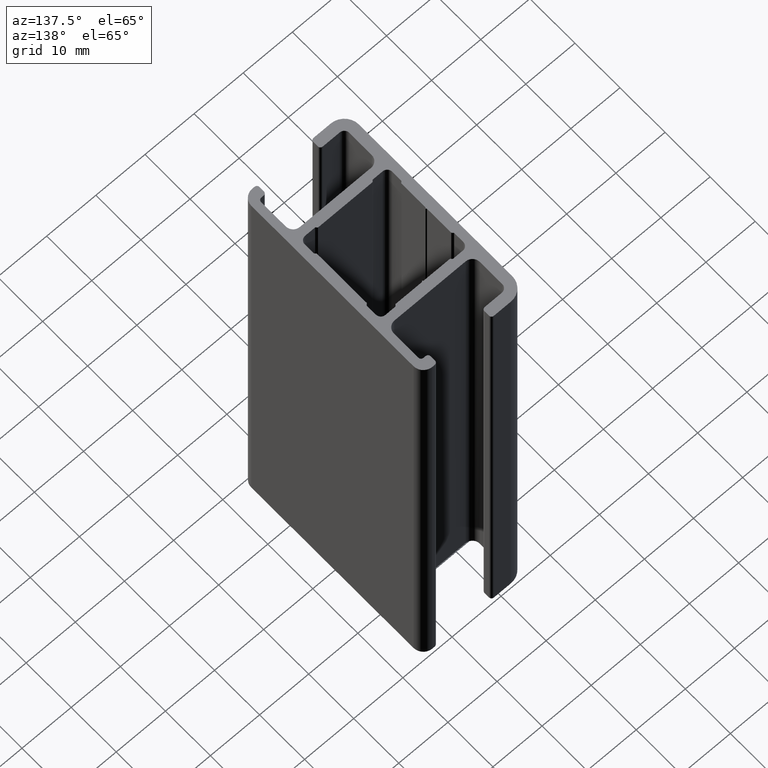
[diagram: clean part render]
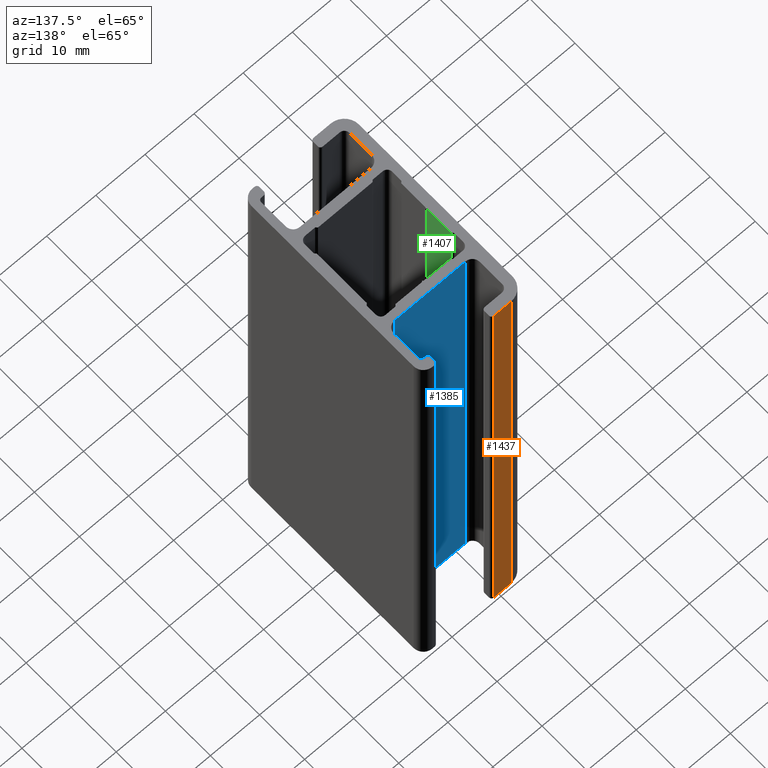
[diagram: same view with three faces highlighted in distinct colors, each labeled with its STEP entity id]
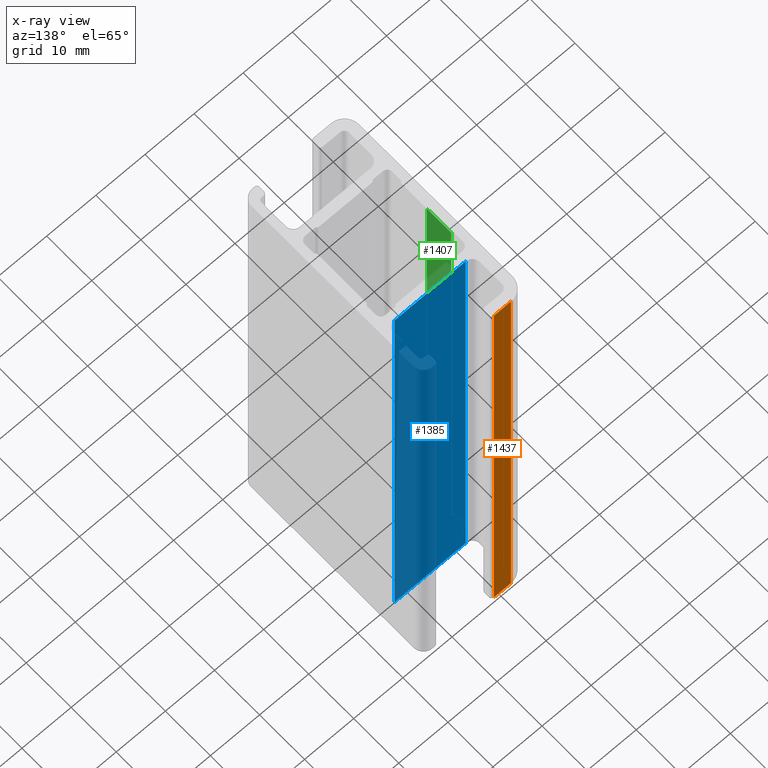
[diagram: x-ray of the same camera — body ghosted, the three highlighted faces saturated]
A machine part, auxiliary view with three faces highlighted in distinct colors.
The next image is the same camera in x-ray (body ghosted, the three faces saturated) — at least one of them is partly hidden behind the body in this view.
Their STEP definitions:

[orange] entity #1437 — the highlighted planar face has unit normal (0, 1, 0).
#57=PLANE('',#1551);
#125=FACE_OUTER_BOUND('',#197,.T.);
#197=EDGE_LOOP('',(#1173,#1174,#1175,#1176));
#212=LINE('',#1984,#374);
#353=LINE('',#2344,#515);
#354=LINE('',#2346,#516);
#355=LINE('',#2347,#517);
#374=VECTOR('',#1580,100.);
#515=VECTOR('',#1917,3.49999999999828);
#516=VECTOR('',#1918,100.);
#517=VECTOR('',#1919,3.49999999999828);
#584=VERTEX_POINT('',#1978);
#586=VERTEX_POINT('',#1982);
#707=VERTEX_POINT('',#2343);
#708=VERTEX_POINT('',#2345);
#726=EDGE_CURVE('',#584,#586,#212,.T.);
#905=EDGE_CURVE('',#707,#586,#353,.T.);
#906=EDGE_CURVE('',#707,#708,#354,.T.);
#907=EDGE_CURVE('',#708,#584,#355,.T.);
#1173=ORIENTED_EDGE('',*,*,#726,.T.);
#1174=ORIENTED_EDGE('',*,*,#905,.F.);
#1175=ORIENTED_EDGE('',*,*,#906,.T.);
#1176=ORIENTED_EDGE('',*,*,#907,.T.);
#1437=ADVANCED_FACE('',(#125),#57,.T.);
#1551=AXIS2_PLACEMENT_3D('',#2342,#1915,#1916);
#1580=DIRECTION('',(0.,0.,-1.));
#1915=DIRECTION('center_axis',(7.63278329429721E-15,1.,0.));
#1916=DIRECTION('ref_axis',(-1.,7.46069872548105E-15,0.));
#1917=DIRECTION('',(1.,-7.63278329429721E-15,0.));
#1918=DIRECTION('',(0.,0.,1.));
#1919=DIRECTION('',(1.,-7.63278329429721E-15,0.));
#1978=CARTESIAN_POINT('',(-8.50000000000123,19.9999999999989,100.));
#1982=CARTESIAN_POINT('',(-8.50000000000123,19.9999999999989,0.));
#1984=CARTESIAN_POINT('',(-8.50000000000121,19.9999999999986,0.));
#2342=CARTESIAN_POINT('Origin',(4.00000000000205,19.9999999999985,0.));
#2343=CARTESIAN_POINT('',(-11.9999999999995,19.9999999999986,0.));
#2344=CARTESIAN_POINT('',(-0.249999999998727,19.9999999999985,0.));
#2345=CARTESIAN_POINT('',(-11.9999999999995,19.9999999999986,100.));
#2346=CARTESIAN_POINT('',(-11.9999999999995,19.9999999999986,0.));
#2347=CARTESIAN_POINT('',(-0.249999999998727,19.9999999999985,100.));

[blue] entity #1385 — the highlighted planar face has unit normal (0, -1, 0).
#20=PLANE('',#1469);
#73=FACE_OUTER_BOUND('',#145,.T.);
#145=EDGE_LOOP('',(#965,#966,#967,#968));
#226=LINE('',#2029,#388);
#227=LINE('',#2032,#389);
#228=LINE('',#2034,#390);
#229=LINE('',#2035,#391);
#388=VECTOR('',#1624,100.);
#389=VECTOR('',#1627,14.4999999999993);
#390=VECTOR('',#1628,14.4999999999993);
#391=VECTOR('',#1629,100.);
#601=VERTEX_POINT('',#2025);
#602=VERTEX_POINT('',#2027);
#603=VERTEX_POINT('',#2031);
#604=VERTEX_POINT('',#2033);
#748=EDGE_CURVE('',#602,#601,#226,.T.);
#749=EDGE_CURVE('',#601,#603,#227,.T.);
#750=EDGE_CURVE('',#604,#602,#228,.T.);
#751=EDGE_CURVE('',#604,#603,#229,.T.);
#965=ORIENTED_EDGE('',*,*,#749,.F.);
#966=ORIENTED_EDGE('',*,*,#748,.F.);
#967=ORIENTED_EDGE('',*,*,#750,.F.);
#968=ORIENTED_EDGE('',*,*,#751,.T.);
#1385=ADVANCED_FACE('',(#73),#20,.F.);
#1469=AXIS2_PLACEMENT_3D('',#2030,#1625,#1626);
#1624=DIRECTION('',(0.,0.,1.));
#1625=DIRECTION('center_axis',(4.74716051908709E-14,-1.,0.));
#1626=DIRECTION('ref_axis',(1.,4.74287276119867E-14,0.));
#1627=DIRECTION('',(-1.,-4.74716051908709E-14,0.));
#1628=DIRECTION('',(1.,4.74716051908709E-14,0.));
#1629=DIRECTION('',(0.,0.,1.));
#2025=CARTESIAN_POINT('',(2.9999999999985,10.4999999999988,100.));
#2027=CARTESIAN_POINT('',(2.9999999999985,10.4999999999988,0.));
#2029=CARTESIAN_POINT('',(2.9999999999985,10.4999999999988,0.));
#2030=CARTESIAN_POINT('Origin',(-11.5000000000008,10.4999999999981,0.));
#2031=CARTESIAN_POINT('',(-11.5000000000008,10.4999999999981,100.));
#2032=CARTESIAN_POINT('',(-8.0000000000005,10.4999999999983,100.));
#2033=CARTESIAN_POINT('',(-11.5000000000008,10.4999999999981,0.));
#2034=CARTESIAN_POINT('',(-8.0000000000005,10.4999999999983,0.));
#2035=CARTESIAN_POINT('',(-11.5000000000008,10.4999999999981,0.));

[green] entity #1407 — the highlighted planar face has unit normal (-1, -0, 0).
#37=PLANE('',#1501);
#95=FACE_OUTER_BOUND('',#167,.T.);
#167=EDGE_LOOP('',(#1053,#1054,#1055,#1056));
#282=LINE('',#2161,#444);
#283=LINE('',#2164,#445);
#284=LINE('',#2166,#446);
#285=LINE('',#2167,#447);
#444=VECTOR('',#1744,100.);
#445=VECTOR('',#1747,5.40000000000004);
#446=VECTOR('',#1748,5.40000000000004);
#447=VECTOR('',#1749,100.);
#645=VERTEX_POINT('',#2157);
#646=VERTEX_POINT('',#2159);
#647=VERTEX_POINT('',#2163);
#648=VERTEX_POINT('',#2165);
#814=EDGE_CURVE('',#646,#645,#282,.T.);
#815=EDGE_CURVE('',#645,#647,#283,.T.);
#816=EDGE_CURVE('',#648,#646,#284,.T.);
#817=EDGE_CURVE('',#648,#647,#285,.T.);
#1053=ORIENTED_EDGE('',*,*,#815,.F.);
#1054=ORIENTED_EDGE('',*,*,#814,.F.);
#1055=ORIENTED_EDGE('',*,*,#816,.F.);
#1056=ORIENTED_EDGE('',*,*,#817,.T.);
#1407=ADVANCED_FACE('',(#95),#37,.F.);
#1501=AXIS2_PLACEMENT_3D('',#2162,#1745,#1746);
#1744=DIRECTION('',(0.,0.,1.));
#1745=DIRECTION('center_axis',(-1.,-5.34551826671367E-14,0.));
#1746=DIRECTION('ref_axis',(5.34683408659475E-14,-1.,0.));
#1747=DIRECTION('',(-5.34551826671367E-14,1.,0.));
#1748=DIRECTION('',(5.34551826671367E-14,-1.,0.));
#1749=DIRECTION('',(0.,0.,1.));
#2157=CARTESIAN_POINT('',(-13.1000000000001,0.150000000000028,100.));
#2159=CARTESIAN_POINT('',(-13.1000000000001,0.150000000000028,0.));
#2161=CARTESIAN_POINT('',(-13.1000000000001,0.150000000000028,0.));
#2162=CARTESIAN_POINT('Origin',(-13.1000000000004,5.55000000000007,0.));
#2163=CARTESIAN_POINT('',(-13.1000000000004,5.55000000000007,100.));
#2164=CARTESIAN_POINT('',(-13.1000000000002,2.77499999999952,100.));
#2165=CARTESIAN_POINT('',(-13.1000000000004,5.55000000000007,0.));
#2166=CARTESIAN_POINT('',(-13.1000000000002,2.77499999999952,0.));
#2167=CARTESIAN_POINT('',(-13.1000000000004,5.55000000000007,0.));